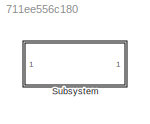
MODEL slx_711ee556c180
KIND model
CONFIG AbsTol = auto
CONFIG EnableMultiTasking = off
CONFIG FixedStep = auto
CONFIG MaxStep = auto
CONFIG MinStep = auto
CONFIG RelTol = 1e-3
CONFIG SampleTimeConstraint = Unconstrained
CONFIG SolverName = VariableStepAuto
CONFIG StartTime = 0.0
CONFIG StopTime = 100.0
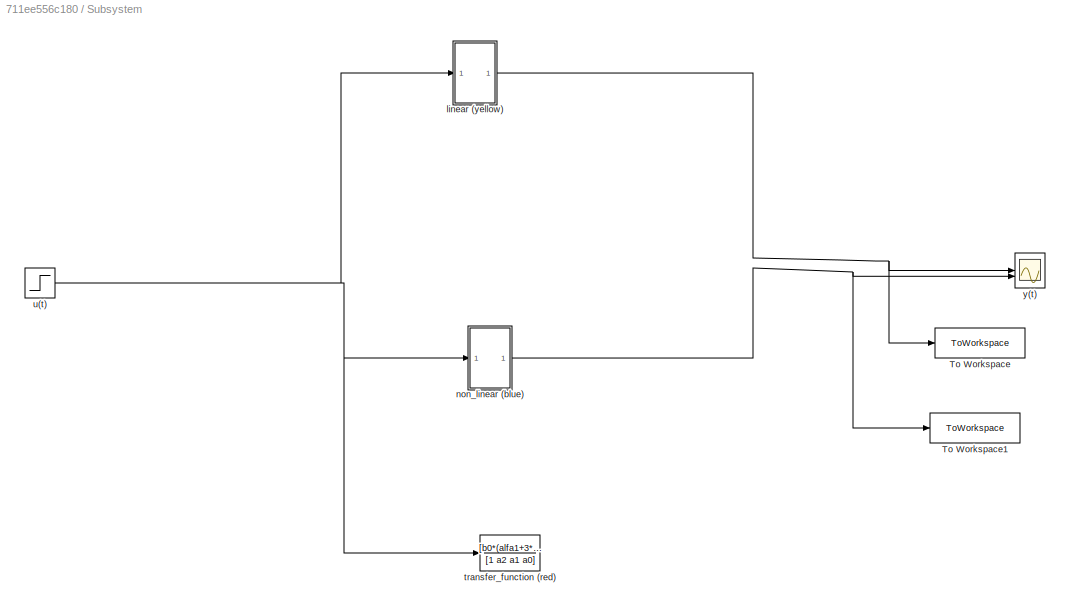
BLOCK [SubSystem] Subsystem
BLOCK [ToWorkspace] Subsystem/To Workspace
  FixptAsFi = on
  MaxDataPoints = inf
  SampleTime = -1
  SaveFormat = Structure With Time
  VariableName = linear
BLOCK [ToWorkspace] Subsystem/To Workspace1
  FixptAsFi = on
  MaxDataPoints = inf
  SampleTime = -1
  SaveFormat = Structure With Time
  VariableName = nonlinear
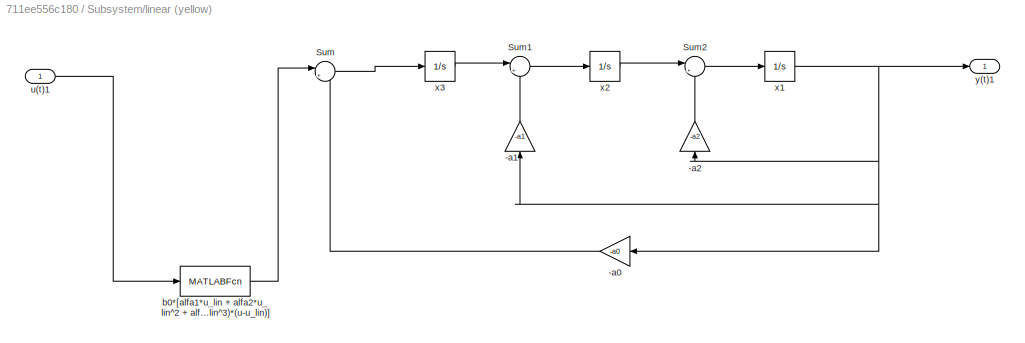
BLOCK [SubSystem] Subsystem/linear (yellow)
BLOCK [Gain] Subsystem/linear (yellow)/-a0
  Gain = -a0
BLOCK [Gain] Subsystem/linear (yellow)/-a1
  Gain = -a1
  NameLocation = right
BLOCK [Gain] Subsystem/linear (yellow)/-a2
  Gain = -a2
  NameLocation = right
BLOCK [Sum] Subsystem/linear (yellow)/Sum
  Inputs = |++
BLOCK [Sum] Subsystem/linear (yellow)/Sum1
  Inputs = |++
BLOCK [Sum] Subsystem/linear (yellow)/Sum2
  Inputs = |++
BLOCK [MATLABFcn] Subsystem/linear (yellow)/b0*[alfa1*u_lin + alfa2*u_lin^2 + alfa3*u_lin^3 + alfa4*u_lin^4 + (alfa1 + 2*alfa2*u_lin + 3*alfa3*u_lin^2 + 4*alfa4*u_lin^3)*(u-u_lin)]
  MATLABFcn = b0*[alfa1*u_lin + alfa2*u_lin^2 + alfa3*u_lin^3 + alfa4*u_lin^4 + (alfa1 + 2*alfa2*u_lin + 3*alfa3*u_lin^2 + 4*alfa4*u_lin^3)*(u-u_lin)]
BLOCK [Inport] Subsystem/linear (yellow)/u(t)1
BLOCK [Integrator] Subsystem/linear (yellow)/x1
BLOCK [Integrator] Subsystem/linear (yellow)/x2
BLOCK [Integrator] Subsystem/linear (yellow)/x3
BLOCK [Outport] Subsystem/linear (yellow)/y(t)1
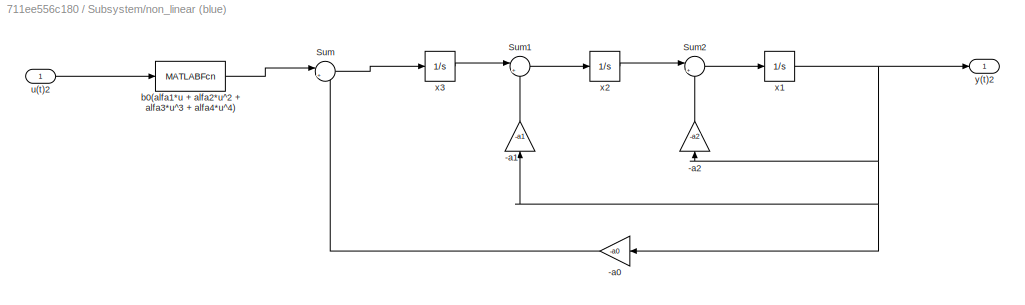
BLOCK [SubSystem] Subsystem/non_linear (blue)
BLOCK [Gain] Subsystem/non_linear (blue)/-a0
  Gain = -a0
BLOCK [Gain] Subsystem/non_linear (blue)/-a1
  Gain = -a1
  NameLocation = right
BLOCK [Gain] Subsystem/non_linear (blue)/-a2
  Gain = -a2
  NameLocation = right
BLOCK [Sum] Subsystem/non_linear (blue)/Sum
  Inputs = |++
BLOCK [Sum] Subsystem/non_linear (blue)/Sum1
  Inputs = |++
BLOCK [Sum] Subsystem/non_linear (blue)/Sum2
  Inputs = |++
BLOCK [MATLABFcn] Subsystem/non_linear (blue)/b0(alfa1*u + alfa2*u^2 + alfa3*u^3 + alfa4*u^4)
  MATLABFcn = b0*alfa1*u + b0*alfa2*u^2 + b0*alfa3*u^3 + b0*alfa4*u^4
BLOCK [Inport] Subsystem/non_linear (blue)/u(t)2
BLOCK [Integrator] Subsystem/non_linear (blue)/x1
BLOCK [Integrator] Subsystem/non_linear (blue)/x2
BLOCK [Integrator] Subsystem/non_linear (blue)/x3
BLOCK [Outport] Subsystem/non_linear (blue)/y(t)2
BLOCK [TransferFcn] Subsystem/transfer_function (red)
  Denominator = [1 a2 a1 a0]
  Numerator = [b0*(alfa1+3*alfa3*u_lin^2+4*alfa4*u_lin^3+2*alfa2*u_lin)]
BLOCK [Step] Subsystem/u(t)
  After = 0.9
  SampleTime = 0
  Time = 10
BLOCK [Scope] Subsystem/y(t)
  Floating = off
  NumInputPorts = 2
  ScopeSpecificationString = Simulink.scopes.TimeScopeBlockCfg('CurrentConfiguration', extmgr.ConfigurationSet(extmgr.Configuration('Core','General UI',true),extmgr.Configuration('Core','Source UI',true),extmgr.Configuration('Sources','WiredSimulink',true),extmgr.Configuration('Visuals','Time Domain',true,'SerializedDisplays',{struct('MinYLimReal','-0.03382','MaxYLimReal','0.193','YLabelReal','','MinYLimMag','0.00000','MaxYLi...<+1513ch>
LINE Subsystem/linear (yellow)/-a0:1 -> Subsystem/linear (yellow)/Sum:2
LINE Subsystem/linear (yellow)/-a1:1 -> Subsystem/linear (yellow)/Sum1:2
LINE Subsystem/linear (yellow)/-a2:1 -> Subsystem/linear (yellow)/Sum2:2
LINE Subsystem/linear (yellow)/Sum1:1 -> Subsystem/linear (yellow)/x2:1
LINE Subsystem/linear (yellow)/Sum2:1 -> Subsystem/linear (yellow)/x1:1
LINE Subsystem/linear (yellow)/Sum:1 -> Subsystem/linear (yellow)/x3:1
LINE Subsystem/linear (yellow)/b0*[alfa1*u_lin + alfa2*u_lin^2 + alfa3*u_lin^3 + alfa4*u_lin^4 + (alfa1 + 2*alfa2*u_lin + 3*alfa3*u_lin^2 + 4*alfa4*u_lin^3)*(u-u_lin)]:1 -> Subsystem/linear (yellow)/Sum:1
LINE Subsystem/linear (yellow)/u(t)1:1 -> Subsystem/linear (yellow)/b0*[alfa1*u_lin + alfa2*u_lin^2 + alfa3*u_lin^3 + alfa4*u_lin^4 + (alfa1 + 2*alfa2*u_lin + 3*alfa3*u_lin^2 + 4*alfa4*u_lin^3)*(u-u_lin)]:1
NET Subsystem/linear (yellow)/x1:1 -> Subsystem/linear (yellow)/-a0:1, Subsystem/linear (yellow)/-a1:1, Subsystem/linear (yellow)/-a2:1, Subsystem/linear (yellow)/y(t)1:1
LINE Subsystem/linear (yellow)/x2:1 -> Subsystem/linear (yellow)/Sum2:1
LINE Subsystem/linear (yellow)/x3:1 -> Subsystem/linear (yellow)/Sum1:1
NET Subsystem/linear (yellow):1 -> Subsystem/To Workspace:1, Subsystem/y(t):1
LINE Subsystem/non_linear (blue)/-a0:1 -> Subsystem/non_linear (blue)/Sum:2
LINE Subsystem/non_linear (blue)/-a1:1 -> Subsystem/non_linear (blue)/Sum1:2
LINE Subsystem/non_linear (blue)/-a2:1 -> Subsystem/non_linear (blue)/Sum2:2
LINE Subsystem/non_linear (blue)/Sum1:1 -> Subsystem/non_linear (blue)/x2:1
LINE Subsystem/non_linear (blue)/Sum2:1 -> Subsystem/non_linear (blue)/x1:1
LINE Subsystem/non_linear (blue)/Sum:1 -> Subsystem/non_linear (blue)/x3:1
LINE Subsystem/non_linear (blue)/b0(alfa1*u + alfa2*u^2 + alfa3*u^3 + alfa4*u^4):1 -> Subsystem/non_linear (blue)/Sum:1
LINE Subsystem/non_linear (blue)/u(t)2:1 -> Subsystem/non_linear (blue)/b0(alfa1*u + alfa2*u^2 + alfa3*u^3 + alfa4*u^4):1
NET Subsystem/non_linear (blue)/x1:1 -> Subsystem/non_linear (blue)/-a0:1, Subsystem/non_linear (blue)/-a1:1, Subsystem/non_linear (blue)/-a2:1, Subsystem/non_linear (blue)/y(t)2:1
LINE Subsystem/non_linear (blue)/x2:1 -> Subsystem/non_linear (blue)/Sum2:1
LINE Subsystem/non_linear (blue)/x3:1 -> Subsystem/non_linear (blue)/Sum1:1
NET Subsystem/non_linear (blue):1 -> Subsystem/To Workspace1:1, Subsystem/y(t):2
NET Subsystem/u(t):1 -> Subsystem/linear (yellow):1, Subsystem/non_linear (blue):1, Subsystem/transfer_function (red):1
note: NET lines group one-source signal fan-out (src -> all destinations, sorted); 1:1 wires keep LINE
